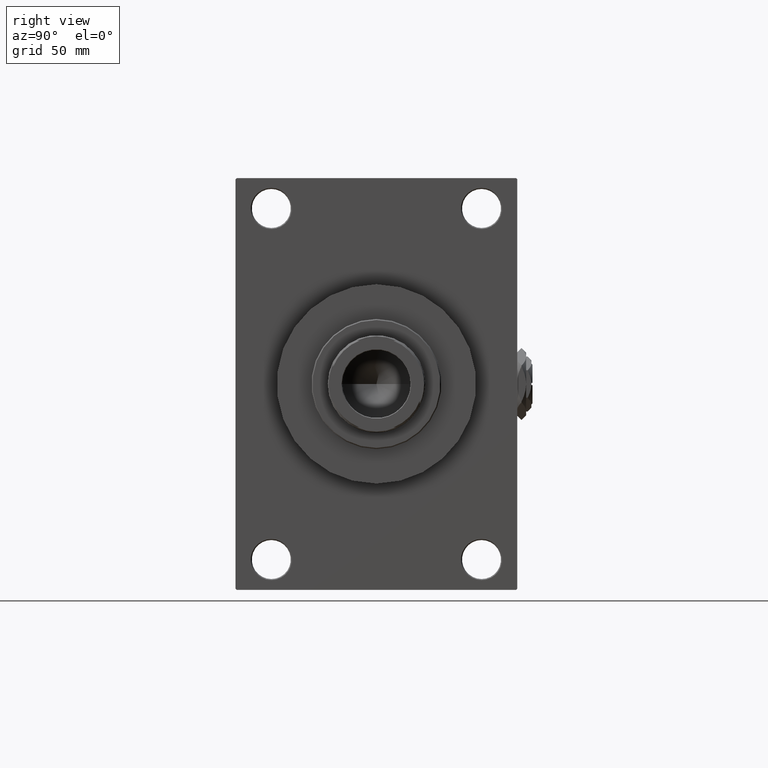
[diagram: clean part render]
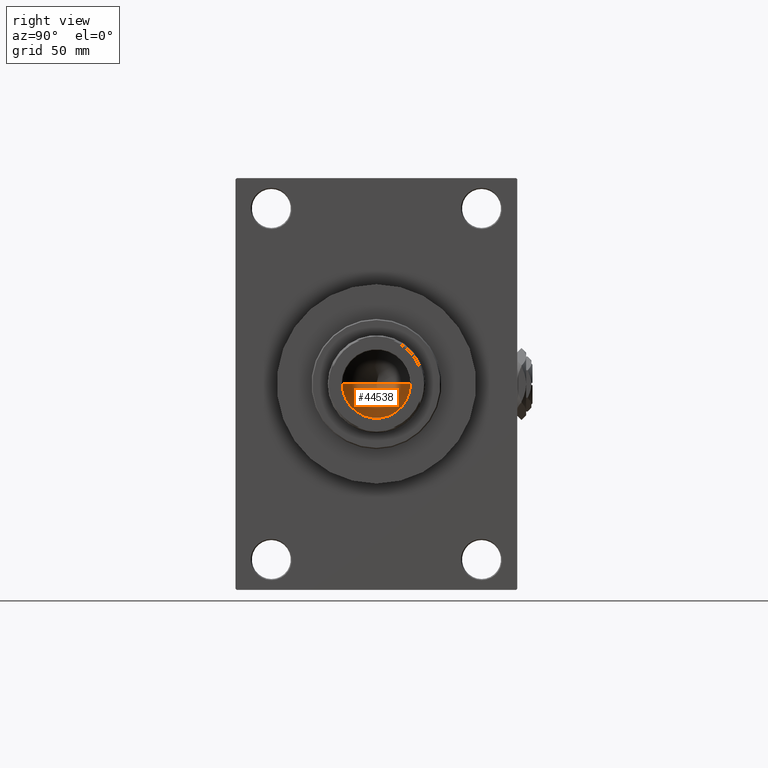
[diagram: same view with one face highlighted and labeled with its STEP entity id]
A machine part, right view. The second image highlights one B-rep face of the part: STEP entity #44538.
In plain terms, the highlighted conical surface has half-angle 59 deg.
Its self-contained STEP definition (entity closure, byte-faithful):
#1272 = DIRECTION ( 'NONE',  ( 1.000000000000000000, 0.000000000000000000, 0.000000000000000000 ) ) ;
#4565 = EDGE_CURVE ( 'NONE', #14257, #27385, #11112, .T. ) ;
#4682 = AXIS2_PLACEMENT_3D ( 'NONE', #17366, #16869, #1272 ) ;
#4964 = VECTOR ( 'NONE', #48940, 1000.000000000000000 ) ;
#5983 = CARTESIAN_POINT ( 'NONE',  ( 0.000000000000000000, 0.000000000000000000, 123.0000000000000284 ) ) ;
#6823 = VECTOR ( 'NONE', #31386, 1000.000000000000000 ) ;
#7952 = EDGE_LOOP ( 'NONE', ( #13006, #16735, #27503 ) ) ;
#9180 = CONICAL_SURFACE ( 'NONE', #15624, 15.74999999999998934, 1.029744258676652979 ) ;
#10499 = DIRECTION ( 'NONE',  ( 1.000000000000000000, 0.000000000000000000, 0.000000000000000000 ) ) ;
#11112 = CIRCLE ( 'NONE', #4682, 15.74999999999998934 ) ;
#13006 = ORIENTED_EDGE ( 'NONE', *, *, #13693, .F. ) ;
#13693 = EDGE_CURVE ( 'NONE', #47947, #27385, #33583, .T. ) ;
#14257 = VERTEX_POINT ( 'NONE', #16128 ) ;
#14688 = CARTESIAN_POINT ( 'NONE',  ( -15.74999999999998934, 1.928818708657080161E-15, 123.0000000000000284 ) ) ;
#15624 = AXIS2_PLACEMENT_3D ( 'NONE', #5983, #33427, #10499 ) ;
#16128 = CARTESIAN_POINT ( 'NONE',  ( 15.74999999999998934, 0.000000000000000000, 123.0000000000000284 ) ) ;
#16735 = ORIENTED_EDGE ( 'NONE', *, *, #40317, .T. ) ;
#16869 = DIRECTION ( 'NONE',  ( -0.000000000000000000, -0.000000000000000000, 1.000000000000000000 ) ) ;
#17366 = CARTESIAN_POINT ( 'NONE',  ( 0.000000000000000000, 0.000000000000000000, 123.0000000000000284 ) ) ;
#27385 = VERTEX_POINT ( 'NONE', #14688 ) ;
#27503 = ORIENTED_EDGE ( 'NONE', *, *, #4565, .T. ) ;
#31386 = DIRECTION ( 'NONE',  ( 0.8571673007021115565, 0.000000000000000000, 0.5150380749100554878 ) ) ;
#33176 = FACE_OUTER_BOUND ( 'NONE', #7952, .T. ) ;
#33427 = DIRECTION ( 'NONE',  ( -0.000000000000000000, -0.000000000000000000, 1.000000000000000000 ) ) ;
#33583 = LINE ( 'NONE', #41365, #4964 ) ;
#34676 = LINE ( 'NONE', #46493, #6823 ) ;
#37304 = CARTESIAN_POINT ( 'NONE',  ( -1.497379240617067851E-14, 0.000000000000000000, 113.5364452503159356 ) ) ;
#40317 = EDGE_CURVE ( 'NONE', #47947, #14257, #34676, .T. ) ;
#41365 = CARTESIAN_POINT ( 'NONE',  ( -15.74999999999998934, 1.928818708657080161E-15, 123.0000000000000284 ) ) ;
#44538 = ADVANCED_FACE ( 'NONE', ( #33176 ), #9180, .F. ) ;
#46493 = CARTESIAN_POINT ( 'NONE',  ( 15.74999999999998934, 0.000000000000000000, 123.0000000000000284 ) ) ;
#47947 = VERTEX_POINT ( 'NONE', #37304 ) ;
#48940 = DIRECTION ( 'NONE',  ( -0.8571673007021115565, 1.049727191138617710E-16, 0.5150380749100554878 ) ) ;